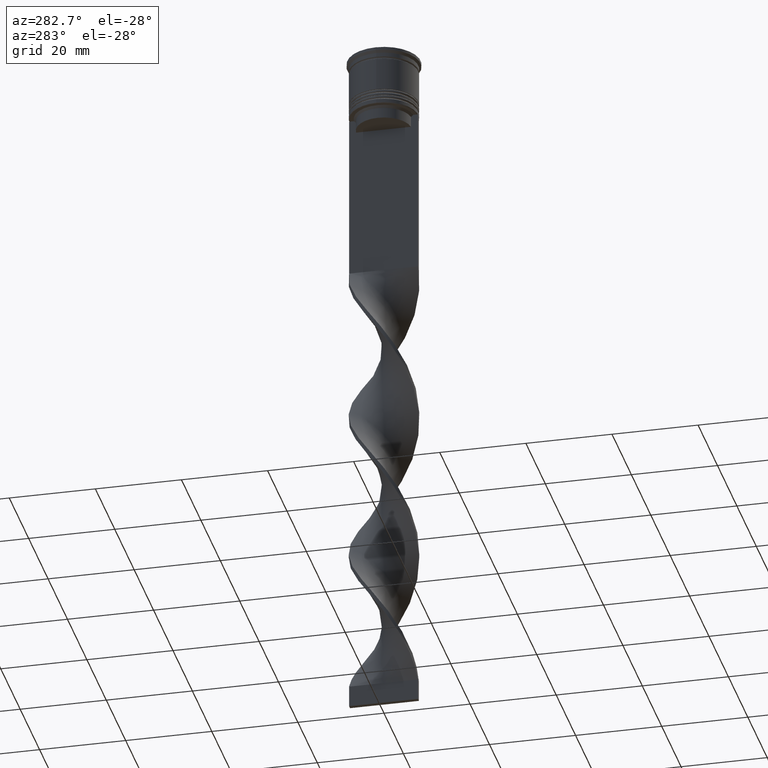
[diagram: clean part render]
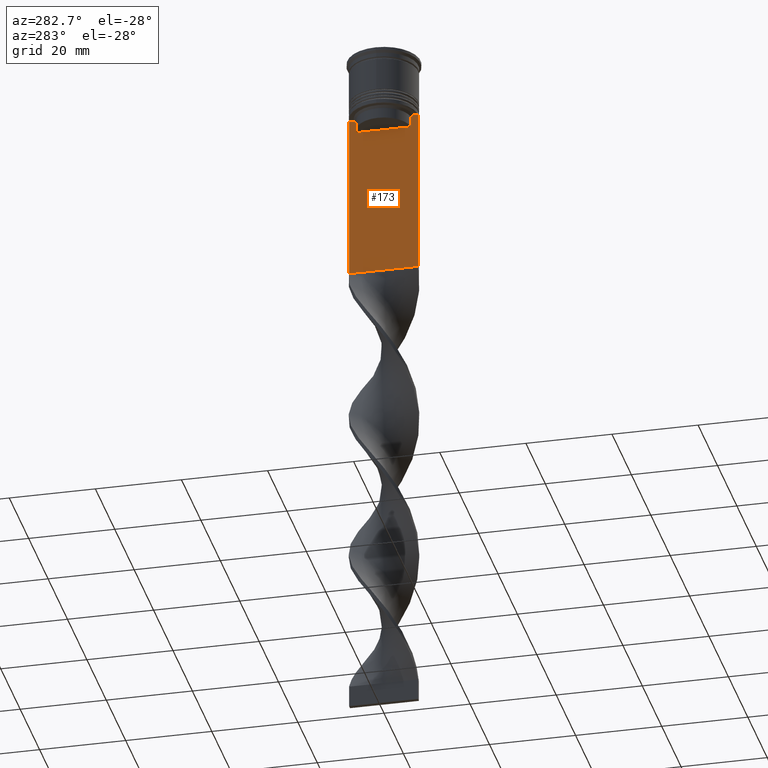
[diagram: same view with one face highlighted and labeled with its STEP entity id]
A machine part, auxiliary view. The second image highlights one B-rep face of the part: STEP entity #173.
In plain terms, the highlighted planar face has unit normal (-1, 0, 0).
Its self-contained STEP definition (entity closure, byte-faithful):
#1 = CARTESIAN_POINT ( 'NONE',  ( -0.4999999999999998890, 6.399999999999999467, -17.00000000000000000 ) ) ;
#43 = DIRECTION ( 'NONE',  ( 0.000000000000000000, -1.000000000000000000, 0.000000000000000000 ) ) ;
#87 = PLANE ( 'NONE',  #378 ) ;
#97 = VERTEX_POINT ( 'NONE', #1822 ) ;
#173 = ADVANCED_FACE ( 'NONE', ( #2646 ), #87, .T. ) ;
#187 = LINE ( 'NONE', #1358, #3109 ) ;
#222 = EDGE_LOOP ( 'NONE', ( #2649, #597, #973, #2971, #1341, #2806, #2871, #1569, #1106, #2894, #2123, #2798 ) ) ;
#297 = CARTESIAN_POINT ( 'NONE',  ( -0.4999999999999998890, -8.000000000000003553, 2.031219541881394530 ) ) ;
#311 = EDGE_CURVE ( 'NONE', #451, #3493, #444, .T. ) ;
#348 = DIRECTION ( 'NONE',  ( 0.000000000000000000, 1.000000000000000000, 0.000000000000000000 ) ) ;
#361 = DIRECTION ( 'NONE',  ( -0.000000000000000000, -0.000000000000000000, 1.000000000000000000 ) ) ;
#365 = LINE ( 'NONE', #2617, #1061 ) ;
#378 = AXIS2_PLACEMENT_3D ( 'NONE', #297, #1465, #2606 ) ;
#424 = VERTEX_POINT ( 'NONE', #3190 ) ;
#444 = LINE ( 'NONE', #2751, #2077 ) ;
#445 = VECTOR ( 'NONE', #1586, 1000.000000000000000 ) ;
#451 = VERTEX_POINT ( 'NONE', #2042 ) ;
#504 = EDGE_CURVE ( 'NONE', #1472, #97, #365, .T. ) ;
#578 = EDGE_CURVE ( 'NONE', #424, #97, #3330, .T. ) ;
#597 = ORIENTED_EDGE ( 'NONE', *, *, #3555, .F. ) ;
#681 = B_SPLINE_CURVE_WITH_KNOTS ( 'NONE', 3,
 ( #1229, #2089, #1719, #2307 ),
 .UNSPECIFIED., .F., .F.,
 ( 4, 4 ),
 ( 0.02996184199614749730, 0.03067452609193703841 ),
 .UNSPECIFIED. ) ;
#724 = DIRECTION ( 'NONE',  ( 0.000000000000000000, -1.000000000000000000, 0.000000000000000000 ) ) ;
#772 = LINE ( 'NONE', #2532, #2810 ) ;
#786 = B_SPLINE_CURVE_WITH_KNOTS ( 'NONE', 3,
 ( #3383, #3331, #3402, #1388 ),
 .UNSPECIFIED., .F., .F.,
 ( 4, 4 ),
 ( 0.01172465562756038263, 0.01243276816391822651 ),
 .UNSPECIFIED. ) ;
#973 = ORIENTED_EDGE ( 'NONE', *, *, #3185, .F. ) ;
#1061 = VECTOR ( 'NONE', #348, 1000.000000000000000 ) ;
#1106 = ORIENTED_EDGE ( 'NONE', *, *, #2700, .F. ) ;
#1133 = VECTOR ( 'NONE', #2182, 1000.000000000000000 ) ;
#1152 = LINE ( 'NONE', #1, #2804 ) ;
#1161 = CARTESIAN_POINT ( 'NONE',  ( -0.4999999999999998890, -6.380438856379708312, -17.00000000000000000 ) ) ;
#1229 = CARTESIAN_POINT ( 'NONE',  ( -0.4999999999999998890, -6.380438856379708312, -14.50000000000000000 ) ) ;
#1282 = DIRECTION ( 'NONE',  ( 0.000000000000000000, -1.000000000000000000, 0.000000000000000000 ) ) ;
#1298 = VERTEX_POINT ( 'NONE', #1161 ) ;
#1341 = ORIENTED_EDGE ( 'NONE', *, *, #504, .F. ) ;
#1358 = CARTESIAN_POINT ( 'NONE',  ( -0.4999999999999998890, -8.000000000000003553, 2.031219541881394530 ) ) ;
#1376 = VERTEX_POINT ( 'NONE', #3539 ) ;
#1388 = CARTESIAN_POINT ( 'NONE',  ( -0.4999999999999998890, 6.380438856379708312, -14.50000000000000000 ) ) ;
#1415 = CARTESIAN_POINT ( 'NONE',  ( -0.4999999999999998890, 6.380438856379708312, -14.50000000000000000 ) ) ;
#1454 = LINE ( 'NONE', #2007, #2203 ) ;
#1465 = DIRECTION ( 'NONE',  ( -1.000000000000000000, 0.000000000000000000, 0.000000000000000000 ) ) ;
#1472 = VERTEX_POINT ( 'NONE', #3132 ) ;
#1483 = EDGE_CURVE ( 'NONE', #1691, #3283, #786, .T. ) ;
#1564 = CARTESIAN_POINT ( 'NONE',  ( -0.4999999999999998890, -8.000000000000003553, -14.00000000000000178 ) ) ;
#1569 = ORIENTED_EDGE ( 'NONE', *, *, #311, .F. ) ;
#1586 = DIRECTION ( 'NONE',  ( 0.000000000000000000, 0.000000000000000000, -1.000000000000000000 ) ) ;
#1691 = VERTEX_POINT ( 'NONE', #2363 ) ;
#1719 = CARTESIAN_POINT ( 'NONE',  ( -0.4999999999999998890, -6.714736947305992132, -14.16668390685738999 ) ) ;
#1809 = EDGE_CURVE ( 'NONE', #3162, #1472, #187, .T. ) ;
#1813 = LINE ( 'NONE', #2949, #2930 ) ;
#1822 = CARTESIAN_POINT ( 'NONE',  ( -0.4999999999999998890, 7.999999999999996447, -53.00000000000000000 ) ) ;
#1969 = EDGE_CURVE ( 'NONE', #3104, #1298, #1152, .T. ) ;
#2007 = CARTESIAN_POINT ( 'NONE',  ( -0.4999999999999998890, -8.000000000000003553, -14.00000000000000178 ) ) ;
#2028 = CARTESIAN_POINT ( 'NONE',  ( -0.4999999999999998890, -6.380438856379708312, -14.50000000000000000 ) ) ;
#2038 = VECTOR ( 'NONE', #1282, 1000.000000000000000 ) ;
#2042 = CARTESIAN_POINT ( 'NONE',  ( -0.4999999999999998890, -6.881860213634098500, -14.00000000000000178 ) ) ;
#2077 = VECTOR ( 'NONE', #724, 1000.000000000000000 ) ;
#2089 = CARTESIAN_POINT ( 'NONE',  ( -0.4999999999999998890, -6.547597841511246131, -14.33335192438652328 ) ) ;
#2123 = ORIENTED_EDGE ( 'NONE', *, *, #1969, .F. ) ;
#2165 = CARTESIAN_POINT ( 'NONE',  ( -0.4999999999999998890, -8.000000000000003553, -14.00000000000000178 ) ) ;
#2181 = EDGE_CURVE ( 'NONE', #3493, #3162, #3638, .T. ) ;
#2182 = DIRECTION ( 'NONE',  ( 0.000000000000000000, -1.000000000000000000, 0.000000000000000000 ) ) ;
#2203 = VECTOR ( 'NONE', #2887, 1000.000000000000000 ) ;
#2307 = CARTESIAN_POINT ( 'NONE',  ( -0.4999999999999998890, -6.881860213634098500, -14.00000000000000178 ) ) ;
#2363 = CARTESIAN_POINT ( 'NONE',  ( -0.4999999999999998890, 6.881860213634098500, -14.00000000000000178 ) ) ;
#2532 = CARTESIAN_POINT ( 'NONE',  ( -0.4999999999999998890, 6.380438856379708312, 0.000000000000000000 ) ) ;
#2606 = DIRECTION ( 'NONE',  ( 0.000000000000000000, 0.000000000000000000, 1.000000000000000000 ) ) ;
#2617 = CARTESIAN_POINT ( 'NONE',  ( -0.4999999999999998890, -8.000000000000003553, -53.00000000000000000 ) ) ;
#2646 = FACE_OUTER_BOUND ( 'NONE', #222, .T. ) ;
#2649 = ORIENTED_EDGE ( 'NONE', *, *, #1483, .F. ) ;
#2661 = CARTESIAN_POINT ( 'NONE',  ( -0.4999999999999998890, -7.884161337770806632, -14.00000000000000178 ) ) ;
#2700 = EDGE_CURVE ( 'NONE', #3368, #451, #681, .T. ) ;
#2751 = CARTESIAN_POINT ( 'NONE',  ( -0.4999999999999998890, -8.000000000000003553, -14.00000000000000178 ) ) ;
#2798 = ORIENTED_EDGE ( 'NONE', *, *, #3069, .F. ) ;
#2804 = VECTOR ( 'NONE', #43, 1000.000000000000000 ) ;
#2806 = ORIENTED_EDGE ( 'NONE', *, *, #1809, .F. ) ;
#2810 = VECTOR ( 'NONE', #3701, 1000.000000000000000 ) ;
#2871 = ORIENTED_EDGE ( 'NONE', *, *, #2181, .F. ) ;
#2887 = DIRECTION ( 'NONE',  ( 0.000000000000000000, -1.000000000000000000, 0.000000000000000000 ) ) ;
#2894 = ORIENTED_EDGE ( 'NONE', *, *, #2951, .F. ) ;
#2930 = VECTOR ( 'NONE', #361, 1000.000000000000000 ) ;
#2949 = CARTESIAN_POINT ( 'NONE',  ( -0.4999999999999998890, -6.380438856379708312, 0.000000000000000000 ) ) ;
#2951 = EDGE_CURVE ( 'NONE', #1298, #3368, #1813, .T. ) ;
#2971 = ORIENTED_EDGE ( 'NONE', *, *, #578, .T. ) ;
#3050 = CARTESIAN_POINT ( 'NONE',  ( -0.4999999999999998890, 7.999999999999996447, 2.031219541881394530 ) ) ;
#3069 = EDGE_CURVE ( 'NONE', #3283, #3104, #772, .T. ) ;
#3104 = VERTEX_POINT ( 'NONE', #3622 ) ;
#3109 = VECTOR ( 'NONE', #3667, 1000.000000000000000 ) ;
#3132 = CARTESIAN_POINT ( 'NONE',  ( -0.4999999999999998890, -8.000000000000003553, -53.00000000000000000 ) ) ;
#3162 = VERTEX_POINT ( 'NONE', #3508 ) ;
#3185 = EDGE_CURVE ( 'NONE', #424, #1376, #1454, .T. ) ;
#3190 = CARTESIAN_POINT ( 'NONE',  ( -0.4999999999999998890, 7.999999999999996447, -14.00000000000000178 ) ) ;
#3283 = VERTEX_POINT ( 'NONE', #1415 ) ;
#3330 = LINE ( 'NONE', #3050, #445 ) ;
#3331 = CARTESIAN_POINT ( 'NONE',  ( -0.4999999999999998890, 6.714736947114692711, -14.16668390704818847 ) ) ;
#3368 = VERTEX_POINT ( 'NONE', #2028 ) ;
#3383 = CARTESIAN_POINT ( 'NONE',  ( -0.4999999999999998890, 6.881860213634098500, -14.00000000000000178 ) ) ;
#3402 = CARTESIAN_POINT ( 'NONE',  ( -0.4999999999999998890, 6.547597841304911626, -14.33335192459222718 ) ) ;
#3493 = VERTEX_POINT ( 'NONE', #2661 ) ;
#3508 = CARTESIAN_POINT ( 'NONE',  ( -0.4999999999999998890, -8.000000000000003553, -14.00000000000000178 ) ) ;
#3539 = CARTESIAN_POINT ( 'NONE',  ( -0.4999999999999998890, 7.884161337770806632, -14.00000000000000178 ) ) ;
#3555 = EDGE_CURVE ( 'NONE', #1376, #1691, #3565, .T. ) ;
#3565 = LINE ( 'NONE', #1564, #2038 ) ;
#3622 = CARTESIAN_POINT ( 'NONE',  ( -0.4999999999999998890, 6.380438856379708312, -17.00000000000000000 ) ) ;
#3638 = LINE ( 'NONE', #2165, #1133 ) ;
#3667 = DIRECTION ( 'NONE',  ( 0.000000000000000000, 0.000000000000000000, -1.000000000000000000 ) ) ;
#3701 = DIRECTION ( 'NONE',  ( 0.000000000000000000, 0.000000000000000000, -1.000000000000000000 ) ) ;